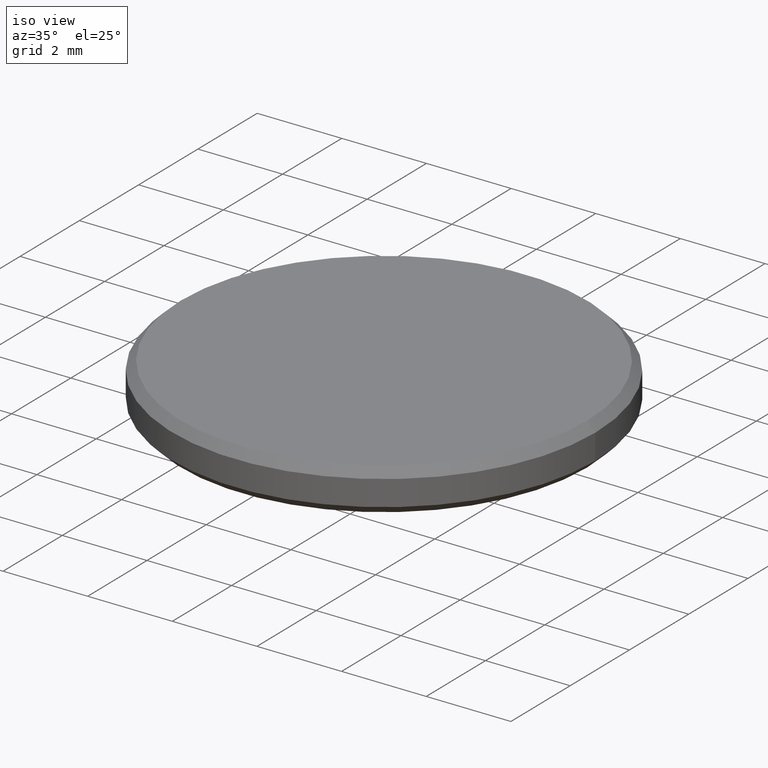
[diagram: clean part render]
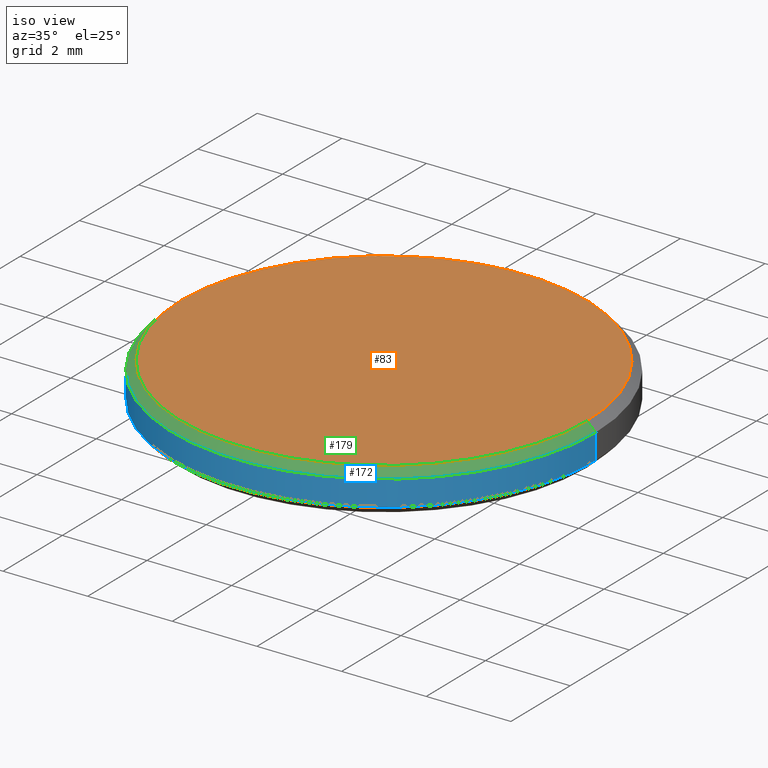
[diagram: same view with three faces highlighted in distinct colors, each labeled with its STEP entity id]
A machine part, iso view with three faces highlighted in distinct colors.
Their STEP definitions:

[orange] entity #83 — the highlighted planar face has unit normal (0, 0, 1).
#5 = AXIS2_PLACEMENT_3D ( 'NONE', #89, #106, #218 ) ;
#11 = FACE_OUTER_BOUND ( 'NONE', #175, .T. ) ;
#21 = AXIS2_PLACEMENT_3D ( 'NONE', #104, #74, #84 ) ;
#28 = ORIENTED_EDGE ( 'NONE', *, *, #188, .T. ) ;
#34 = DIRECTION ( 'NONE',  ( 0.000000000000000000, 0.000000000000000000, 1.000000000000000000 ) ) ;
#70 = EDGE_CURVE ( 'NONE', #229, #119, #95, .T. ) ;
#71 = CARTESIAN_POINT ( 'NONE',  ( -4.800000000000002487, 0.000000000000000000, 1.000000000000000000 ) ) ;
#74 = DIRECTION ( 'NONE',  ( 0.000000000000000000, 0.000000000000000000, 1.000000000000000000 ) ) ;
#83 = ADVANCED_FACE ( 'NONE', ( #11 ), #196, .T. ) ;
#84 = DIRECTION ( 'NONE',  ( 1.000000000000000000, 0.000000000000000000, -0.000000000000000000 ) ) ;
#89 = CARTESIAN_POINT ( 'NONE',  ( 0.000000000000000000, 0.000000000000000000, 1.000000000000000000 ) ) ;
#95 = CIRCLE ( 'NONE', #130, 4.800000000000002487 ) ;
#104 = CARTESIAN_POINT ( 'NONE',  ( 0.000000000000000000, 0.000000000000000000, 1.000000000000000000 ) ) ;
#105 = CARTESIAN_POINT ( 'NONE',  ( 0.000000000000000000, 0.000000000000000000, 1.000000000000000000 ) ) ;
#106 = DIRECTION ( 'NONE',  ( 0.000000000000000000, 0.000000000000000000, 1.000000000000000000 ) ) ;
#117 = CIRCLE ( 'NONE', #5, 4.800000000000002487 ) ;
#119 = VERTEX_POINT ( 'NONE', #71 ) ;
#130 = AXIS2_PLACEMENT_3D ( 'NONE', #105, #34, #144 ) ;
#144 = DIRECTION ( 'NONE',  ( 1.000000000000000000, 0.000000000000000000, 0.000000000000000000 ) ) ;
#157 = ORIENTED_EDGE ( 'NONE', *, *, #70, .T. ) ;
#167 = CARTESIAN_POINT ( 'NONE',  ( 4.800000000000002487, 6.000769315822031726E-16, 1.000000000000000000 ) ) ;
#175 = EDGE_LOOP ( 'NONE', ( #28, #157 ) ) ;
#188 = EDGE_CURVE ( 'NONE', #119, #229, #117, .T. ) ;
#196 = PLANE ( 'NONE',  #21 ) ;
#218 = DIRECTION ( 'NONE',  ( 1.000000000000000000, 0.000000000000000000, 0.000000000000000000 ) ) ;
#229 = VERTEX_POINT ( 'NONE', #167 ) ;

[blue] entity #172 — the highlighted cylindrical surface (partial cylindrical patch) has radius 5 mm, axis along (-0, -0, -1).
#3 = AXIS2_PLACEMENT_3D ( 'NONE', #187, #182, #12 ) ;
#12 = DIRECTION ( 'NONE',  ( 1.000000000000000000, 0.000000000000000000, 0.000000000000000000 ) ) ;
#18 = VECTOR ( 'NONE', #201, 1000.000000000000000 ) ;
#24 = ORIENTED_EDGE ( 'NONE', *, *, #195, .F. ) ;
#26 = VERTEX_POINT ( 'NONE', #173 ) ;
#48 = VERTEX_POINT ( 'NONE', #198 ) ;
#50 = AXIS2_PLACEMENT_3D ( 'NONE', #217, #212, #204 ) ;
#57 = CARTESIAN_POINT ( 'NONE',  ( 5.000000000000000000, 6.123233995736766282E-16, 1.000000000000000000 ) ) ;
#61 = DIRECTION ( 'NONE',  ( 0.000000000000000000, 0.000000000000000000, -1.000000000000000000 ) ) ;
#65 = ORIENTED_EDGE ( 'NONE', *, *, #239, .T. ) ;
#73 = DIRECTION ( 'NONE',  ( 1.000000000000000000, 0.000000000000000000, 0.000000000000000000 ) ) ;
#75 = FACE_OUTER_BOUND ( 'NONE', #191, .T. ) ;
#78 = ORIENTED_EDGE ( 'NONE', *, *, #224, .T. ) ;
#98 = AXIS2_PLACEMENT_3D ( 'NONE', #163, #61, #73 ) ;
#122 = VERTEX_POINT ( 'NONE', #126 ) ;
#126 = CARTESIAN_POINT ( 'NONE',  ( 5.000000000000000000, 6.123233995736766282E-16, 0.8000000000000012657 ) ) ;
#128 = DIRECTION ( 'NONE',  ( -0.000000000000000000, -0.000000000000000000, -1.000000000000000000 ) ) ;
#133 = CARTESIAN_POINT ( 'NONE',  ( -5.000000000000000000, 0.000000000000000000, 1.000000000000000000 ) ) ;
#143 = CIRCLE ( 'NONE', #98, 5.000000000000000000 ) ;
#147 = VECTOR ( 'NONE', #128, 1000.000000000000000 ) ;
#148 = CYLINDRICAL_SURFACE ( 'NONE', #50, 5.000000000000000000 ) ;
#150 = LINE ( 'NONE', #133, #18 ) ;
#155 = CIRCLE ( 'NONE', #3, 5.000000000000000000 ) ;
#156 = VERTEX_POINT ( 'NONE', #165 ) ;
#163 = CARTESIAN_POINT ( 'NONE',  ( 0.000000000000000000, 0.000000000000000000, 0.8000000000000012657 ) ) ;
#165 = CARTESIAN_POINT ( 'NONE',  ( 5.000000000000000000, 6.123233995736766282E-16, 0.1999999999999996503 ) ) ;
#172 = ADVANCED_FACE ( 'NONE', ( #75 ), #148, .T. ) ;
#173 = CARTESIAN_POINT ( 'NONE',  ( -5.000000000000000000, 0.000000000000000000, 0.8000000000000012657 ) ) ;
#176 = ORIENTED_EDGE ( 'NONE', *, *, #222, .T. ) ;
#182 = DIRECTION ( 'NONE',  ( -0.000000000000000000, -0.000000000000000000, 1.000000000000000000 ) ) ;
#187 = CARTESIAN_POINT ( 'NONE',  ( 0.000000000000000000, 0.000000000000000000, 0.1999999999999996503 ) ) ;
#191 = EDGE_LOOP ( 'NONE', ( #24, #65, #176, #78 ) ) ;
#195 = EDGE_CURVE ( 'NONE', #122, #156, #240, .T. ) ;
#198 = CARTESIAN_POINT ( 'NONE',  ( -5.000000000000000000, 0.000000000000000000, 0.1999999999999996503 ) ) ;
#201 = DIRECTION ( 'NONE',  ( -0.000000000000000000, -0.000000000000000000, -1.000000000000000000 ) ) ;
#204 = DIRECTION ( 'NONE',  ( -1.000000000000000000, 0.000000000000000000, 0.000000000000000000 ) ) ;
#212 = DIRECTION ( 'NONE',  ( -0.000000000000000000, -0.000000000000000000, -1.000000000000000000 ) ) ;
#217 = CARTESIAN_POINT ( 'NONE',  ( 0.000000000000000000, 0.000000000000000000, 1.000000000000000000 ) ) ;
#222 = EDGE_CURVE ( 'NONE', #26, #48, #150, .T. ) ;
#224 = EDGE_CURVE ( 'NONE', #48, #156, #155, .T. ) ;
#239 = EDGE_CURVE ( 'NONE', #122, #26, #143, .T. ) ;
#240 = LINE ( 'NONE', #57, #147 ) ;

[green] entity #179 — the highlighted conical surface has half-angle 45 deg.
#4 = ORIENTED_EDGE ( 'NONE', *, *, #63, .T. ) ;
#5 = AXIS2_PLACEMENT_3D ( 'NONE', #89, #106, #218 ) ;
#7 = EDGE_LOOP ( 'NONE', ( #189, #79, #4, #193 ) ) ;
#8 = VECTOR ( 'NONE', #35, 1000.000000000000114 ) ;
#10 = DIRECTION ( 'NONE',  ( -0.7071067811865460184, 0.000000000000000000, -0.7071067811865489050 ) ) ;
#26 = VERTEX_POINT ( 'NONE', #173 ) ;
#31 = LINE ( 'NONE', #125, #69 ) ;
#35 = DIRECTION ( 'NONE',  ( 0.7071067811865460184, 8.659560562354913137E-17, -0.7071067811865489050 ) ) ;
#39 = FACE_OUTER_BOUND ( 'NONE', #7, .T. ) ;
#59 = DIRECTION ( 'NONE',  ( -1.000000000000000000, 0.000000000000000000, 0.000000000000000000 ) ) ;
#60 = EDGE_CURVE ( 'NONE', #229, #122, #234, .T. ) ;
#61 = DIRECTION ( 'NONE',  ( 0.000000000000000000, 0.000000000000000000, -1.000000000000000000 ) ) ;
#63 = EDGE_CURVE ( 'NONE', #119, #26, #31, .T. ) ;
#69 = VECTOR ( 'NONE', #10, 1000.000000000000114 ) ;
#71 = CARTESIAN_POINT ( 'NONE',  ( -4.800000000000002487, 0.000000000000000000, 1.000000000000000000 ) ) ;
#73 = DIRECTION ( 'NONE',  ( 1.000000000000000000, 0.000000000000000000, 0.000000000000000000 ) ) ;
#79 = ORIENTED_EDGE ( 'NONE', *, *, #188, .F. ) ;
#89 = CARTESIAN_POINT ( 'NONE',  ( 0.000000000000000000, 0.000000000000000000, 1.000000000000000000 ) ) ;
#91 = AXIS2_PLACEMENT_3D ( 'NONE', #151, #220, #59 ) ;
#98 = AXIS2_PLACEMENT_3D ( 'NONE', #163, #61, #73 ) ;
#106 = DIRECTION ( 'NONE',  ( 0.000000000000000000, 0.000000000000000000, 1.000000000000000000 ) ) ;
#117 = CIRCLE ( 'NONE', #5, 4.800000000000002487 ) ;
#119 = VERTEX_POINT ( 'NONE', #71 ) ;
#122 = VERTEX_POINT ( 'NONE', #126 ) ;
#125 = CARTESIAN_POINT ( 'NONE',  ( -4.800000000000002487, 0.000000000000000000, 1.000000000000000000 ) ) ;
#126 = CARTESIAN_POINT ( 'NONE',  ( 5.000000000000000000, 6.123233995736766282E-16, 0.8000000000000012657 ) ) ;
#143 = CIRCLE ( 'NONE', #98, 5.000000000000000000 ) ;
#151 = CARTESIAN_POINT ( 'NONE',  ( 0.000000000000000000, 0.000000000000000000, 1.000000000000000000 ) ) ;
#161 = CARTESIAN_POINT ( 'NONE',  ( 4.800000000000002487, 5.878304635907297169E-16, 1.000000000000000000 ) ) ;
#163 = CARTESIAN_POINT ( 'NONE',  ( 0.000000000000000000, 0.000000000000000000, 0.8000000000000012657 ) ) ;
#167 = CARTESIAN_POINT ( 'NONE',  ( 4.800000000000002487, 6.000769315822031726E-16, 1.000000000000000000 ) ) ;
#173 = CARTESIAN_POINT ( 'NONE',  ( -5.000000000000000000, 0.000000000000000000, 0.8000000000000012657 ) ) ;
#179 = ADVANCED_FACE ( 'NONE', ( #39 ), #216, .T. ) ;
#188 = EDGE_CURVE ( 'NONE', #119, #229, #117, .T. ) ;
#189 = ORIENTED_EDGE ( 'NONE', *, *, #60, .F. ) ;
#193 = ORIENTED_EDGE ( 'NONE', *, *, #239, .F. ) ;
#216 = CONICAL_SURFACE ( 'NONE', #91, 4.800000000000002487, 0.7853981633974461696 ) ;
#218 = DIRECTION ( 'NONE',  ( 1.000000000000000000, 0.000000000000000000, 0.000000000000000000 ) ) ;
#220 = DIRECTION ( 'NONE',  ( 0.000000000000000000, 0.000000000000000000, -1.000000000000000000 ) ) ;
#229 = VERTEX_POINT ( 'NONE', #167 ) ;
#234 = LINE ( 'NONE', #161, #8 ) ;
#239 = EDGE_CURVE ( 'NONE', #122, #26, #143, .T. ) ;